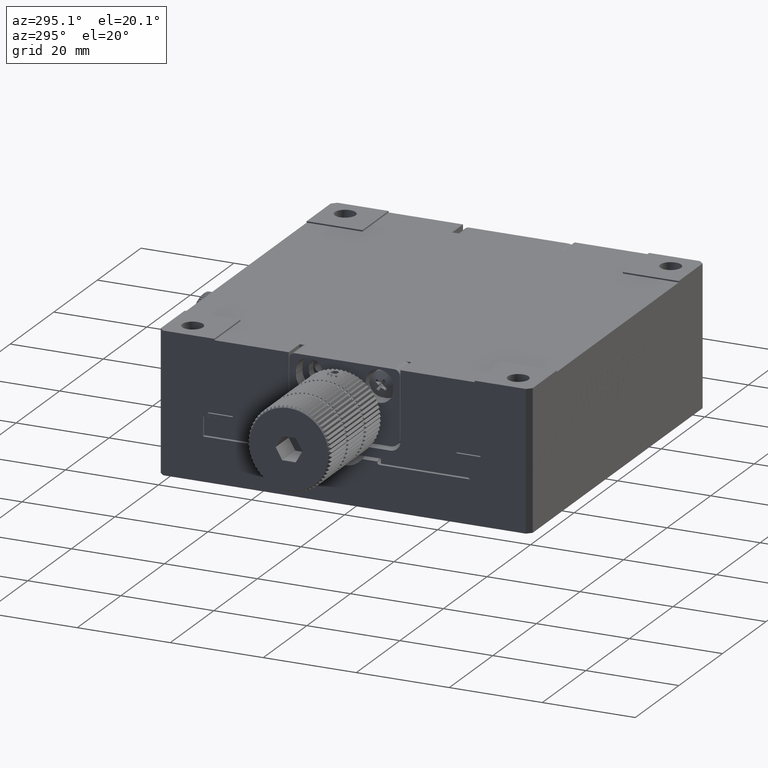
[diagram: clean part render]
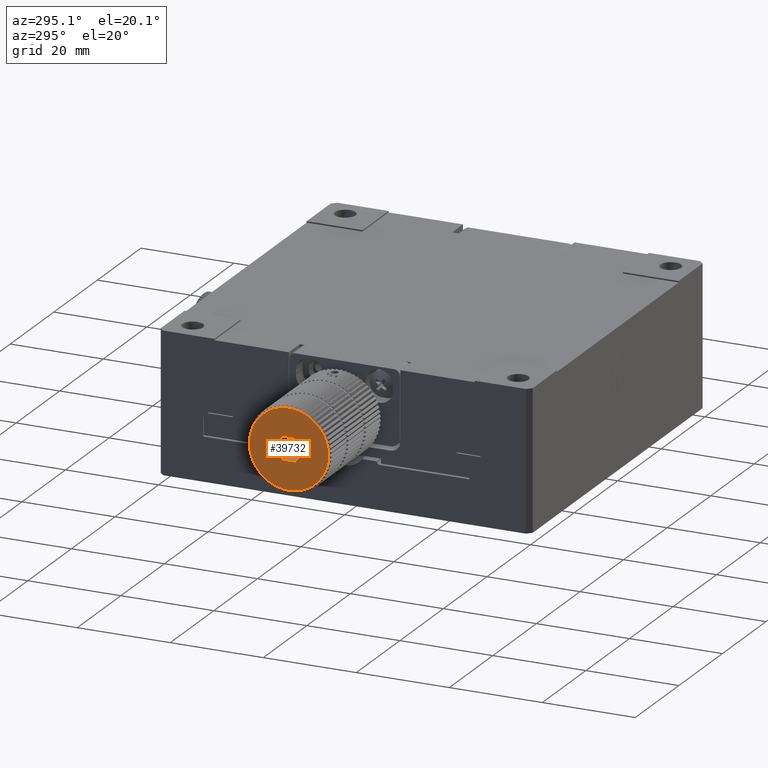
[diagram: same view with one face highlighted and labeled with its STEP entity id]
A machine part, auxiliary view. The second image highlights one B-rep face of the part: STEP entity #39732.
In plain terms, the highlighted planar face has unit normal (1, -0, 0).
Its self-contained STEP definition (entity closure, byte-faithful):
#49 = ORIENTED_EDGE ( 'NONE', *, *, #8546, .F. ) ;
#249 = CIRCLE ( 'NONE', #64759, 8.500000000000007105 ) ;
#580 = CIRCLE ( 'NONE', #71680, 8.500000000000007105 ) ;
#670 = DIRECTION ( 'NONE',  ( 0.000000000000000000, 0.000000000000000000, -1.000000000000000000 ) ) ;
#745 = AXIS2_PLACEMENT_3D ( 'NONE', #79942, #17253, #42410 ) ;
#915 = DIRECTION ( 'NONE',  ( 0.000000000000000000, 0.000000000000000000, -1.000000000000000000 ) ) ;
#1123 = DIRECTION ( 'NONE',  ( 0.000000000000000000, 0.000000000000000000, -1.000000000000000000 ) ) ;
#1296 = CARTESIAN_POINT ( 'NONE',  ( -65.49999999999998579, -2.602085213965210642E-15, 149.9000000000000625 ) ) ;
#1355 = AXIS2_PLACEMENT_3D ( 'NONE', #43711, #50290, #26387 ) ;
#1403 = VERTEX_POINT ( 'NONE', #20637 ) ;
#1473 = AXIS2_PLACEMENT_3D ( 'NONE', #64090, #63680, #64890 ) ;
#1675 = ORIENTED_EDGE ( 'NONE', *, *, #11315, .F. ) ;
#1880 = AXIS2_PLACEMENT_3D ( 'NONE', #57156, #64560, #670 ) ;
#1881 = DIRECTION ( 'NONE',  ( 0.000000000000000000, 0.000000000000000000, -1.000000000000000000 ) ) ;
#2090 = EDGE_CURVE ( 'NONE', #49206, #3150, #51617, .T. ) ;
#2216 = DIRECTION ( 'NONE',  ( 0.000000000000000000, 0.000000000000000000, -1.000000000000000000 ) ) ;
#2444 = DIRECTION ( 'NONE',  ( 0.000000000000000000, 0.4999999999999996669, -0.8660254037844388186 ) ) ;
#2457 = VERTEX_POINT ( 'NONE', #15653 ) ;
#2539 = EDGE_CURVE ( 'NONE', #9751, #55110, #22224, .T. ) ;
#2725 = DIRECTION ( 'NONE',  ( 1.000000000000000000, 0.000000000000000000, -0.000000000000000000 ) ) ;
#2787 = CARTESIAN_POINT ( 'NONE',  ( -65.49999999999998579, -2.602085213965204331E-15, 158.4000000000000625 ) ) ;
#2946 = ORIENTED_EDGE ( 'NONE', *, *, #35283, .F. ) ;
#3104 = CIRCLE ( 'NONE', #74228, 8.500000000000007105 ) ;
#3150 = VERTEX_POINT ( 'NONE', #56783 ) ;
#3173 = CARTESIAN_POINT ( 'NONE',  ( -65.49999999999998579, -2.602085213965210642E-15, 149.9000000000000625 ) ) ;
#3210 = CIRCLE ( 'NONE', #44070, 8.500000000000007105 ) ;
#3227 = AXIS2_PLACEMENT_3D ( 'NONE', #40644, #71148, #34455 ) ;
#3348 = VECTOR ( 'NONE', #9612, 1000.000000000000227 ) ;
#3401 = CARTESIAN_POINT ( 'NONE',  ( -65.49999999999998579, -2.602085213965210642E-15, 149.9000000000000625 ) ) ;
#3557 = CIRCLE ( 'NONE', #74695, 8.500000000000007105 ) ;
#3790 = CARTESIAN_POINT ( 'NONE',  ( -65.49999999999998579, 4.996174644485998684, 156.7766444521871279 ) ) ;
#3972 = DIRECTION ( 'NONE',  ( 0.000000000000000000, 0.000000000000000000, -1.000000000000000000 ) ) ;
#4261 = ORIENTED_EDGE ( 'NONE', *, *, #74813, .F. ) ;
#4557 = CIRCLE ( 'NONE', #49294, 8.500000000000007105 ) ;
#4575 = CIRCLE ( 'NONE', #55913, 8.500000000000007105 ) ;
#4640 = CARTESIAN_POINT ( 'NONE',  ( -65.49999999999998579, 8.500000000000007105, 149.9000000000000909 ) ) ;
#4659 = ORIENTED_EDGE ( 'NONE', *, *, #31353, .F. ) ;
#4763 = DIRECTION ( 'NONE',  ( 1.000000000000000000, 0.000000000000000000, -0.000000000000000000 ) ) ;
#4978 = EDGE_CURVE ( 'NONE', #77252, #26659, #64049, .T. ) ;
#5400 = CIRCLE ( 'NONE', #25152, 8.500000000000007105 ) ;
#5704 = EDGE_CURVE ( 'NONE', #42052, #10383, #32557, .T. ) ;
#5749 = AXIS2_PLACEMENT_3D ( 'NONE', #70449, #75818, #50648 ) ;
#6021 = CIRCLE ( 'NONE', #66582, 8.500000000000007105 ) ;
#6094 = VERTEX_POINT ( 'NONE', #73417 ) ;
#6116 = ORIENTED_EDGE ( 'NONE', *, *, #20027, .F. ) ;
#6300 = AXIS2_PLACEMENT_3D ( 'NONE', #10201, #35382, #3972 ) ;
#6407 = ORIENTED_EDGE ( 'NONE', *, *, #62968, .F. ) ;
#6447 = CIRCLE ( 'NONE', #73617, 8.500000000000007105 ) ;
#6583 = CARTESIAN_POINT ( 'NONE',  ( -65.49999999999998579, -2.602085213965210642E-15, 149.9000000000000625 ) ) ;
#6675 = DIRECTION ( 'NONE',  ( 1.000000000000000000, -0.000000000000000000, 0.000000000000000000 ) ) ;
#6703 = ORIENTED_EDGE ( 'NONE', *, *, #17338, .F. ) ;
#7067 = DIRECTION ( 'NONE',  ( 0.000000000000000000, 0.000000000000000000, -1.000000000000000000 ) ) ;
#7355 = VERTEX_POINT ( 'NONE', #33575 ) ;
#7526 = DIRECTION ( 'NONE',  ( 0.000000000000000000, -0.4999999999999997780, -0.8660254037844387076 ) ) ;
#7682 = ORIENTED_EDGE ( 'NONE', *, *, #63151, .F. ) ;
#7691 = DIRECTION ( 'NONE',  ( 0.000000000000000000, 0.000000000000000000, -1.000000000000000000 ) ) ;
#7734 = VERTEX_POINT ( 'NONE', #49507 ) ;
#7846 = AXIS2_PLACEMENT_3D ( 'NONE', #37117, #80010, #48228 ) ;
#7871 = DIRECTION ( 'NONE',  ( 0.000000000000000000, 0.000000000000000000, -1.000000000000000000 ) ) ;
#7982 = DIRECTION ( 'NONE',  ( 0.000000000000000000, 1.000000000000000000, 0.000000000000000000 ) ) ;
#8003 = VERTEX_POINT ( 'NONE', #13211 ) ;
#8064 = DIRECTION ( 'NONE',  ( 1.000000000000000000, 0.000000000000000000, -0.000000000000000000 ) ) ;
#8322 = CIRCLE ( 'NONE', #9620, 8.500000000000007105 ) ;
#8372 = ORIENTED_EDGE ( 'NONE', *, *, #47863, .F. ) ;
#8390 = CARTESIAN_POINT ( 'NONE',  ( -65.49999999999998579, -2.602085213965207486E-15, 152.4000000000000625 ) ) ;
#8401 = CARTESIAN_POINT ( 'NONE',  ( -65.49999999999998579, 7.361215932167707976, 154.1500000000001194 ) ) ;
#8546 = EDGE_CURVE ( 'NONE', #63642, #26712, #3557, .T. ) ;
#8643 = VERTEX_POINT ( 'NONE', #62194 ) ;
#8834 = CARTESIAN_POINT ( 'NONE',  ( -65.49999999999998579, -0.8884919377751197000, 158.3534361106304118 ) ) ;
#9167 = EDGE_CURVE ( 'NONE', #9293, #80777, #57631, .T. ) ;
#9191 = CARTESIAN_POINT ( 'NONE',  ( -65.49999999999998579, -3.457261466144362139, 157.6651363899621288 ) ) ;
#9293 = VERTEX_POINT ( 'NONE', #45067 ) ;
#9492 = CARTESIAN_POINT ( 'NONE',  ( -65.49999999999998579, -2.602085213965210642E-15, 149.9000000000000625 ) ) ;
#9496 = AXIS2_PLACEMENT_3D ( 'NONE', #43256, #8064, #1881 ) ;
#9612 = DIRECTION ( 'NONE',  ( 0.000000000000000000, -0.4999999999999997780, 0.8660254037844387076 ) ) ;
#9620 = AXIS2_PLACEMENT_3D ( 'NONE', #28284, #77751, #34883 ) ;
#9652 = CARTESIAN_POINT ( 'NONE',  ( -65.49999999999998579, 3.457261466144313733, 142.1348636100379395 ) ) ;
#9751 = VERTEX_POINT ( 'NONE', #53138 ) ;
#9781 = DIRECTION ( 'NONE',  ( 0.000000000000000000, 0.000000000000000000, -1.000000000000000000 ) ) ;
#9803 = CARTESIAN_POINT ( 'NONE',  ( -65.49999999999998579, -2.602085213965210642E-15, 149.9000000000000625 ) ) ;
#9858 = DIRECTION ( 'NONE',  ( 1.000000000000000000, 0.000000000000000000, -0.000000000000000000 ) ) ;
#10141 = DIRECTION ( 'NONE',  ( 0.000000000000000000, 0.000000000000000000, -1.000000000000000000 ) ) ;
#10160 = DIRECTION ( 'NONE',  ( 0.000000000000000000, 0.000000000000000000, -1.000000000000000000 ) ) ;
#10201 = CARTESIAN_POINT ( 'NONE',  ( -65.49999999999998579, -2.602085213965210642E-15, 149.9000000000000625 ) ) ;
#10383 = VERTEX_POINT ( 'NONE', #47238 ) ;
#10595 = AXIS2_PLACEMENT_3D ( 'NONE', #6583, #63091, #24782 ) ;
#11001 = EDGE_CURVE ( 'NONE', #31815, #72341, #6447, .T. ) ;
#11315 = EDGE_CURVE ( 'NONE', #70831, #57020, #69735, .T. ) ;
#11579 = EDGE_CURVE ( 'NONE', #1403, #42052, #40799, .T. ) ;
#11857 = CIRCLE ( 'NONE', #22381, 8.500000000000007105 ) ;
#11893 = ORIENTED_EDGE ( 'NONE', *, *, #60087, .F. ) ;
#12105 = CIRCLE ( 'NONE', #1355, 8.500000000000007105 ) ;
#12606 = DIRECTION ( 'NONE',  ( 0.000000000000000000, 0.000000000000000000, -1.000000000000000000 ) ) ;
#12728 = DIRECTION ( 'NONE',  ( 1.000000000000000000, 0.000000000000000000, -0.000000000000000000 ) ) ;
#12887 = PLANE ( 'NONE',  #51855 ) ;
#13090 = DIRECTION ( 'NONE',  ( 1.000000000000000000, 0.000000000000000000, -0.000000000000000000 ) ) ;
#13211 = CARTESIAN_POINT ( 'NONE',  ( -65.49999999999998579, -6.876644452186997825, 144.9038253555139306 ) ) ;
#13289 = AXIS2_PLACEMENT_3D ( 'NONE', #20877, #60023, #72794 ) ;
#13297 = CARTESIAN_POINT ( 'NONE',  ( -65.49999999999998579, -2.602085213965207486E-15, 149.9000000000000625 ) ) ;
#13300 = VERTEX_POINT ( 'NONE', #30561 ) ;
#13454 = CARTESIAN_POINT ( 'NONE',  ( -65.49999999999998579, 2.886751345948126435, 149.9000000000000625 ) ) ;
#13573 = DIRECTION ( 'NONE',  ( 1.000000000000000000, 0.000000000000000000, -0.000000000000000000 ) ) ;
#13618 = EDGE_CURVE ( 'NONE', #2457, #42749, #67448, .T. ) ;
#13625 = VERTEX_POINT ( 'NONE', #40696 ) ;
#13856 = AXIS2_PLACEMENT_3D ( 'NONE', #19547, #44692, #50879 ) ;
#14111 = EDGE_CURVE ( 'NONE', #55110, #46762, #77204, .T. ) ;
#14411 = DIRECTION ( 'NONE',  ( 0.000000000000000000, 0.000000000000000000, -1.000000000000000000 ) ) ;
#14469 = CARTESIAN_POINT ( 'NONE',  ( -65.49999999999998579, -2.602085213965210642E-15, 149.9000000000000625 ) ) ;
#14561 = EDGE_CURVE ( 'NONE', #59884, #32542, #17381, .T. ) ;
#14587 = CARTESIAN_POINT ( 'NONE',  ( -65.49999999999998579, -2.602085213965210642E-15, 149.9000000000000625 ) ) ;
#14705 = EDGE_CURVE ( 'NONE', #48698, #7734, #249, .T. ) ;
#14739 = CIRCLE ( 'NONE', #41099, 8.500000000000007105 ) ;
#14788 = EDGE_CURVE ( 'NONE', #13300, #44056, #14739, .T. ) ;
#14870 = CARTESIAN_POINT ( 'NONE',  ( -65.49999999999998579, -2.602085213965210642E-15, 149.9000000000000625 ) ) ;
#15653 = CARTESIAN_POINT ( 'NONE',  ( -65.49999999999998579, 5.687610154050267930, 156.2167310165579863 ) ) ;
#15841 = CIRCLE ( 'NONE', #50019, 8.500000000000007105 ) ;
#15967 = DIRECTION ( 'NONE',  ( 1.000000000000000000, 0.000000000000000000, -0.000000000000000000 ) ) ;
#16046 = CARTESIAN_POINT ( 'NONE',  ( -65.49999999999998579, -8.453436110630319078, 150.7884919377750350 ) ) ;
#16282 = ORIENTED_EDGE ( 'NONE', *, *, #17163, .F. ) ;
#16438 = CIRCLE ( 'NONE', #3227, 8.500000000000007105 ) ;
#17111 = CARTESIAN_POINT ( 'NONE',  ( -65.49999999999998579, -2.602085213965207486E-15, 147.4000000000000625 ) ) ;
#17139 = DIRECTION ( 'NONE',  ( 1.000000000000000000, 0.000000000000000000, -0.000000000000000000 ) ) ;
#17163 = EDGE_CURVE ( 'NONE', #30664, #44758, #66251, .T. ) ;
#17253 = DIRECTION ( 'NONE',  ( 1.000000000000000000, 0.000000000000000000, -0.000000000000000000 ) ) ;
#17274 = ORIENTED_EDGE ( 'NONE', *, *, #56155, .F. ) ;
#17338 = EDGE_CURVE ( 'NONE', #6094, #42928, #67630, .T. ) ;
#17381 = CIRCLE ( 'NONE', #22660, 8.500000000000007105 ) ;
#17479 = DIRECTION ( 'NONE',  ( 0.000000000000000000, 0.000000000000000000, -1.000000000000000000 ) ) ;
#18083 = DIRECTION ( 'NONE',  ( 1.000000000000000000, 0.000000000000000000, -0.000000000000000000 ) ) ;
#18108 = CARTESIAN_POINT ( 'NONE',  ( -65.49999999999998579, -5.687610154050226186, 143.5832689834421387 ) ) ;
#18196 = ORIENTED_EDGE ( 'NONE', *, *, #43834, .F. ) ;
#18230 = DIRECTION ( 'NONE',  ( 1.000000000000000000, 0.000000000000000000, -0.000000000000000000 ) ) ;
#18429 = DIRECTION ( 'NONE',  ( 1.000000000000000000, 0.000000000000000000, -0.000000000000000000 ) ) ;
#18546 = CARTESIAN_POINT ( 'NONE',  ( -65.49999999999998579, -2.602085213965210642E-15, 149.9000000000000625 ) ) ;
#18639 = CARTESIAN_POINT ( 'NONE',  ( -65.49999999999998579, -4.996174644485942729, 143.0233555478129119 ) ) ;
#18718 = CARTESIAN_POINT ( 'NONE',  ( -65.49999999999998579, -2.602085213965210642E-15, 149.9000000000000625 ) ) ;
#18838 = CARTESIAN_POINT ( 'NONE',  ( -65.49999999999998579, 7.765136389962123964, 146.4427385338557883 ) ) ;
#18869 = CARTESIAN_POINT ( 'NONE',  ( -65.49999999999998579, -2.602085213965210642E-15, 149.9000000000000625 ) ) ;
#18964 = EDGE_CURVE ( 'NONE', #35557, #36874, #4575, .T. ) ;
#19515 = VERTEX_POINT ( 'NONE', #50967 ) ;
#19547 = CARTESIAN_POINT ( 'NONE',  ( -65.49999999999998579, -2.602085213965210642E-15, 149.9000000000000625 ) ) ;
#19888 = VERTEX_POINT ( 'NONE', #79575 ) ;
#19922 = CARTESIAN_POINT ( 'NONE',  ( -65.49999999999998579, -6.316731016557899814, 155.5876101540503100 ) ) ;
#19938 = CARTESIAN_POINT ( 'NONE',  ( -65.49999999999998579, -2.602085213965210642E-15, 149.9000000000000625 ) ) ;
#19968 = CARTESIAN_POINT ( 'NONE',  ( -65.49999999999998579, -1.443375672974067214, 147.4000000000000625 ) ) ;
#20013 = ORIENTED_EDGE ( 'NONE', *, *, #27387, .F. ) ;
#20027 = EDGE_CURVE ( 'NONE', #26659, #20952, #49437, .T. ) ;
#20320 = ORIENTED_EDGE ( 'NONE', *, *, #64785, .F. ) ;
#20406 = EDGE_CURVE ( 'NONE', #78114, #49291, #42500, .T. ) ;
#20408 = ORIENTED_EDGE ( 'NONE', *, *, #69089, .F. ) ;
#20502 = DIRECTION ( 'NONE',  ( 0.000000000000000000, 0.000000000000000000, -1.000000000000000000 ) ) ;
#20510 = DIRECTION ( 'NONE',  ( 1.000000000000000000, 0.000000000000000000, -0.000000000000000000 ) ) ;
#20548 = VERTEX_POINT ( 'NONE', #50678 ) ;
#20637 = CARTESIAN_POINT ( 'NONE',  ( -65.49999999999998579, 7.361215932167736398, 145.6500000000000909 ) ) ;
#20877 = CARTESIAN_POINT ( 'NONE',  ( -65.49999999999998579, -2.602085213965210642E-15, 149.9000000000000625 ) ) ;
#20952 = VERTEX_POINT ( 'NONE', #55442 ) ;
#21168 = DIRECTION ( 'NONE',  ( 1.000000000000000000, 0.000000000000000000, -0.000000000000000000 ) ) ;
#21220 = ORIENTED_EDGE ( 'NONE', *, *, #70969, .F. ) ;
#21609 = ORIENTED_EDGE ( 'NONE', *, *, #23657, .F. ) ;
#21708 = CARTESIAN_POINT ( 'NONE',  ( -65.49999999999998579, -2.602085213965210642E-15, 149.9000000000000625 ) ) ;
#21745 = CARTESIAN_POINT ( 'NONE',  ( -65.49999999999998579, -2.602085213965210642E-15, 149.9000000000000625 ) ) ;
#21858 = DIRECTION ( 'NONE',  ( 1.000000000000000000, 0.000000000000000000, -0.000000000000000000 ) ) ;
#22053 = AXIS2_PLACEMENT_3D ( 'NONE', #50030, #44268, #50436 ) ;
#22076 = CARTESIAN_POINT ( 'NONE',  ( -65.49999999999998579, -8.083980388508853920, 152.5266444521870142 ) ) ;
#22224 = LINE ( 'NONE', #65527, #54300 ) ;
#22317 = VECTOR ( 'NONE', #62039, 1000.000000000000000 ) ;
#22381 = AXIS2_PLACEMENT_3D ( 'NONE', #74418, #42669, #67811 ) ;
#22422 = ORIENTED_EDGE ( 'NONE', *, *, #27012, .F. ) ;
#22546 = ORIENTED_EDGE ( 'NONE', *, *, #64329, .F. ) ;
#22551 = DIRECTION ( 'NONE',  ( 1.000000000000000000, 0.000000000000000000, -0.000000000000000000 ) ) ;
#22590 = CIRCLE ( 'NONE', #26570, 8.500000000000007105 ) ;
#22660 = AXIS2_PLACEMENT_3D ( 'NONE', #52623, #59627, #77395 ) ;
#22661 = DIRECTION ( 'NONE',  ( 0.000000000000000000, 0.000000000000000000, -1.000000000000000000 ) ) ;
#22845 = AXIS2_PLACEMENT_3D ( 'NONE', #75558, #55768, #68552 ) ;
#23067 = CIRCLE ( 'NONE', #50726, 8.500000000000007105 ) ;
#23075 = DIRECTION ( 'NONE',  ( 1.000000000000000000, 0.000000000000000000, -0.000000000000000000 ) ) ;
#23138 = ORIENTED_EDGE ( 'NONE', *, *, #14561, .F. ) ;
#23149 = VERTEX_POINT ( 'NONE', #70490 ) ;
#23258 = CIRCLE ( 'NONE', #40413, 8.500000000000007105 ) ;
#23266 = ORIENTED_EDGE ( 'NONE', *, *, #45125, .F. ) ;
#23294 = EDGE_CURVE ( 'NONE', #42749, #72510, #42782, .T. ) ;
#23374 = CARTESIAN_POINT ( 'NONE',  ( -65.49999999999998579, -2.886751345948132208, 149.9000000000000625 ) ) ;
#23603 = CARTESIAN_POINT ( 'NONE',  ( -65.49999999999998579, -2.602085213965210642E-15, 149.9000000000000625 ) ) ;
#23657 = EDGE_CURVE ( 'NONE', #44056, #7355, #3210, .T. ) ;
#23873 = DIRECTION ( 'NONE',  ( 0.000000000000000000, 0.000000000000000000, -1.000000000000000000 ) ) ;
#24317 = CIRCLE ( 'NONE', #45373, 8.500000000000007105 ) ;
#24610 = ORIENTED_EDGE ( 'NONE', *, *, #71375, .F. ) ;
#24782 = DIRECTION ( 'NONE',  ( 0.000000000000000000, 0.000000000000000000, -1.000000000000000000 ) ) ;
#24865 = DIRECTION ( 'NONE',  ( 0.000000000000000000, 0.000000000000000000, -1.000000000000000000 ) ) ;
#25152 = AXIS2_PLACEMENT_3D ( 'NONE', #14870, #58580, #78752 ) ;
#25158 = CIRCLE ( 'NONE', #39651, 8.500000000000007105 ) ;
#25289 = EDGE_CURVE ( 'NONE', #60459, #78114, #580, .T. ) ;
#25670 = FACE_OUTER_BOUND ( 'NONE', #54393, .T. ) ;
#25724 = AXIS2_PLACEMENT_3D ( 'NONE', #26810, #51929, #14411 ) ;
#25789 = CIRCLE ( 'NONE', #25724, 8.500000000000007105 ) ;
#25802 = VERTEX_POINT ( 'NONE', #48530 ) ;
#26018 = VERTEX_POINT ( 'NONE', #8834 ) ;
#26095 = VERTEX_POINT ( 'NONE', #65303 ) ;
#26387 = DIRECTION ( 'NONE',  ( 0.000000000000000000, 0.000000000000000000, -1.000000000000000000 ) ) ;
#26485 = CARTESIAN_POINT ( 'NONE',  ( -65.49999999999998579, 2.886751345948125991, 149.9000000000000625 ) ) ;
#26570 = AXIS2_PLACEMENT_3D ( 'NONE', #42346, #22551, #28372 ) ;
#26659 = VERTEX_POINT ( 'NONE', #73392 ) ;
#26712 = VERTEX_POINT ( 'NONE', #68019 ) ;
#26750 = EDGE_CURVE ( 'NONE', #39011, #39507, #25789, .T. ) ;
#26810 = CARTESIAN_POINT ( 'NONE',  ( -65.49999999999998579, -2.602085213965210642E-15, 149.9000000000000625 ) ) ;
#26986 = CARTESIAN_POINT ( 'NONE',  ( -65.49999999999998579, -6.316731016557788791, 144.2123898459497013 ) ) ;
#27012 = EDGE_CURVE ( 'NONE', #3150, #54175, #35039, .T. ) ;
#27387 = EDGE_CURVE ( 'NONE', #26095, #68595, #6021, .T. ) ;
#27959 = DIRECTION ( 'NONE',  ( 1.000000000000000000, 0.000000000000000000, -0.000000000000000000 ) ) ;
#28284 = CARTESIAN_POINT ( 'NONE',  ( -65.49999999999998579, -2.602085213965210642E-15, 149.9000000000000625 ) ) ;
#28372 = DIRECTION ( 'NONE',  ( 0.000000000000000000, 0.000000000000000000, -1.000000000000000000 ) ) ;
#28397 = DIRECTION ( 'NONE',  ( 1.000000000000000000, 0.000000000000000000, -0.000000000000000000 ) ) ;
#28528 = AXIS2_PLACEMENT_3D ( 'NONE', #51442, #38709, #44457 ) ;
#28587 = VERTEX_POINT ( 'NONE', #28840 ) ;
#28645 = ORIENTED_EDGE ( 'NONE', *, *, #4978, .F. ) ;
#28818 = DIRECTION ( 'NONE',  ( 1.000000000000000000, 0.000000000000000000, -0.000000000000000000 ) ) ;
#28840 = CARTESIAN_POINT ( 'NONE',  ( -65.49999999999998579, -5.687610154050351419, 156.2167310165578726 ) ) ;
#29003 = VECTOR ( 'NONE', #7982, 1000.000000000000000 ) ;
#29464 = DIRECTION ( 'NONE',  ( 1.000000000000000000, 0.000000000000000000, -0.000000000000000000 ) ) ;
#29540 = DIRECTION ( 'NONE',  ( 1.000000000000000000, 0.000000000000000000, -0.000000000000000000 ) ) ;
#29847 = CARTESIAN_POINT ( 'NONE',  ( -65.49999999999998579, -2.626644452187111511, 157.9839803885088543 ) ) ;
#29923 = DIRECTION ( 'NONE',  ( 1.000000000000000000, 0.000000000000000000, -0.000000000000000000 ) ) ;
#29996 = CIRCLE ( 'NONE', #6300, 8.500000000000007105 ) ;
#30149 = CARTESIAN_POINT ( 'NONE',  ( -65.49999999999998579, -2.626644452186952083, 141.8160196114912139 ) ) ;
#30311 = DIRECTION ( 'NONE',  ( 0.000000000000000000, 0.000000000000000000, -1.000000000000000000 ) ) ;
#30351 = CIRCLE ( 'NONE', #10595, 8.500000000000007105 ) ;
#30392 = CARTESIAN_POINT ( 'NONE',  ( -65.49999999999998579, -8.314254606237359013, 148.1327506280489956 ) ) ;
#30561 = CARTESIAN_POINT ( 'NONE',  ( -65.49999999999998579, -3.457261466144209816, 142.1348636100379110 ) ) ;
#30664 = VERTEX_POINT ( 'NONE', #64196 ) ;
#30796 = ORIENTED_EDGE ( 'NONE', *, *, #20406, .F. ) ;
#31268 = DIRECTION ( 'NONE',  ( 1.000000000000000000, 0.000000000000000000, -0.000000000000000000 ) ) ;
#31353 = EDGE_CURVE ( 'NONE', #80777, #2457, #53945, .T. ) ;
#31462 = CARTESIAN_POINT ( 'NONE',  ( -65.49999999999998579, 8.083980388508798853, 152.5266444521871279 ) ) ;
#31714 = CARTESIAN_POINT ( 'NONE',  ( -65.49999999999998579, -2.602085213965210642E-15, 149.9000000000000625 ) ) ;
#31815 = VERTEX_POINT ( 'NONE', #22076 ) ;
#32318 = ORIENTED_EDGE ( 'NONE', *, *, #56427, .F. ) ;
#32542 = VERTEX_POINT ( 'NONE', #9652 ) ;
#32557 = CIRCLE ( 'NONE', #78587, 8.500000000000007105 ) ;
#32906 = DIRECTION ( 'NONE',  ( 0.000000000000000000, 0.000000000000000000, -1.000000000000000000 ) ) ;
#33073 = DIRECTION ( 'NONE',  ( 1.000000000000000000, 0.000000000000000000, -0.000000000000000000 ) ) ;
#33123 = ORIENTED_EDGE ( 'NONE', *, *, #23294, .F. ) ;
#33248 = CIRCLE ( 'NONE', #50253, 8.500000000000007105 ) ;
#33450 = VERTEX_POINT ( 'NONE', #73296 ) ;
#33466 = VERTEX_POINT ( 'NONE', #35794 ) ;
#33575 = CARTESIAN_POINT ( 'NONE',  ( -65.49999999999998579, -1.767249371950853964, 141.5857453937626644 ) ) ;
#33605 = EDGE_CURVE ( 'NONE', #25802, #66350, #69811, .T. ) ;
#33739 = EDGE_CURVE ( 'NONE', #48781, #33466, #15841, .T. ) ;
#34455 = DIRECTION ( 'NONE',  ( 0.000000000000000000, 0.000000000000000000, -1.000000000000000000 ) ) ;
#34519 = AXIS2_PLACEMENT_3D ( 'NONE', #21745, #15967, #66642 ) ;
#34570 = DIRECTION ( 'NONE',  ( 1.000000000000000000, 0.000000000000000000, -0.000000000000000000 ) ) ;
#34777 = ORIENTED_EDGE ( 'NONE', *, *, #48331, .F. ) ;
#34883 = DIRECTION ( 'NONE',  ( 0.000000000000000000, 0.000000000000000000, -1.000000000000000000 ) ) ;
#34926 = CARTESIAN_POINT ( 'NONE',  ( -65.49999999999998579, -2.602085213965210642E-15, 149.9000000000000625 ) ) ;
#34933 = CIRCLE ( 'NONE', #13856, 8.500000000000007105 ) ;
#35039 = CIRCLE ( 'NONE', #745, 8.500000000000007105 ) ;
#35174 = CIRCLE ( 'NONE', #75936, 8.500000000000007105 ) ;
#35283 = EDGE_CURVE ( 'NONE', #8003, #60459, #12105, .T. ) ;
#35321 = EDGE_CURVE ( 'NONE', #39507, #47970, #30351, .T. ) ;
#35382 = DIRECTION ( 'NONE',  ( 1.000000000000000000, 0.000000000000000000, -0.000000000000000000 ) ) ;
#35557 = VERTEX_POINT ( 'NONE', #16046 ) ;
#35794 = CARTESIAN_POINT ( 'NONE',  ( -65.49999999999998579, 5.687610154050309674, 143.5832689834421956 ) ) ;
#35844 = CIRCLE ( 'NONE', #48981, 8.500000000000007105 ) ;
#35879 = EDGE_CURVE ( 'NONE', #33466, #19515, #25158, .T. ) ;
#36213 = DIRECTION ( 'NONE',  ( 0.000000000000000000, 0.000000000000000000, -1.000000000000000000 ) ) ;
#36747 = CARTESIAN_POINT ( 'NONE',  ( -65.49999999999998579, -2.602085213965210642E-15, 149.9000000000000625 ) ) ;
#36874 = VERTEX_POINT ( 'NONE', #61145 ) ;
#37117 = CARTESIAN_POINT ( 'NONE',  ( -65.49999999999998579, -2.602085213965210642E-15, 149.9000000000000625 ) ) ;
#37661 = AXIS2_PLACEMENT_3D ( 'NONE', #78073, #21168, #47118 ) ;
#38011 = ORIENTED_EDGE ( 'NONE', *, *, #75645, .F. ) ;
#38309 = CIRCLE ( 'NONE', #13289, 8.500000000000007105 ) ;
#38440 = CARTESIAN_POINT ( 'NONE',  ( -65.49999999999998579, 4.250000000000017764, 142.5387840678323244 ) ) ;
#38554 = AXIS2_PLACEMENT_3D ( 'NONE', #21708, #65013, #20502 ) ;
#38612 = AXIS2_PLACEMENT_3D ( 'NONE', #9492, #73383, #41646 ) ;
#38709 = DIRECTION ( 'NONE',  ( 1.000000000000000000, 0.000000000000000000, -0.000000000000000000 ) ) ;
#39011 = VERTEX_POINT ( 'NONE', #66178 ) ;
#39495 = CIRCLE ( 'NONE', #7846, 8.500000000000007105 ) ;
#39507 = VERTEX_POINT ( 'NONE', #29847 ) ;
#39601 = CIRCLE ( 'NONE', #63304, 8.500000000000007105 ) ;
#39651 = AXIS2_PLACEMENT_3D ( 'NONE', #58446, #20510, #1123 ) ;
#39732 = ADVANCED_FACE ( 'NONE', ( #25670, #81341 ), #12887, .F. ) ;
#39745 = CARTESIAN_POINT ( 'NONE',  ( -65.49999999999998579, -4.250000000000072831, 157.2612159321677439 ) ) ;
#40110 = EDGE_CURVE ( 'NONE', #40216, #70831, #53150, .T. ) ;
#40163 = CARTESIAN_POINT ( 'NONE',  ( -65.49999999999998579, -4.249999999999906741, 142.5387840678322675 ) ) ;
#40216 = VERTEX_POINT ( 'NONE', #30392 ) ;
#40257 = DIRECTION ( 'NONE',  ( 0.000000000000000000, 0.000000000000000000, -1.000000000000000000 ) ) ;
#40413 = AXIS2_PLACEMENT_3D ( 'NONE', #56855, #13573, #57272 ) ;
#40644 = CARTESIAN_POINT ( 'NONE',  ( -65.49999999999998579, -2.602085213965210642E-15, 149.9000000000000625 ) ) ;
#40696 = CARTESIAN_POINT ( 'NONE',  ( -65.49999999999998579, 1.767249371950902592, 158.2142546062374606 ) ) ;
#40799 = CIRCLE ( 'NONE', #48646, 8.500000000000007105 ) ;
#41099 = AXIS2_PLACEMENT_3D ( 'NONE', #74446, #29540, #10141 ) ;
#41226 = EDGE_CURVE ( 'NONE', #54175, #9293, #71715, .T. ) ;
#41233 = CIRCLE ( 'NONE', #38612, 8.500000000000007105 ) ;
#41299 = AXIS2_PLACEMENT_3D ( 'NONE', #14469, #33073, #52400 ) ;
#41335 = CIRCLE ( 'NONE', #5749, 8.500000000000007105 ) ;
#41438 = VERTEX_POINT ( 'NONE', #75825 ) ;
#41587 = DIRECTION ( 'NONE',  ( 0.000000000000000000, 0.000000000000000000, -1.000000000000000000 ) ) ;
#41621 = CIRCLE ( 'NONE', #58754, 8.500000000000007105 ) ;
#41646 = DIRECTION ( 'NONE',  ( 0.000000000000000000, 0.000000000000000000, -1.000000000000000000 ) ) ;
#42052 = VERTEX_POINT ( 'NONE', #18838 ) ;
#42094 = DIRECTION ( 'NONE',  ( 0.000000000000000000, 0.000000000000000000, -1.000000000000000000 ) ) ;
#42237 = ORIENTED_EDGE ( 'NONE', *, *, #18964, .F. ) ;
#42316 = ORIENTED_EDGE ( 'NONE', *, *, #61411, .F. ) ;
#42346 = CARTESIAN_POINT ( 'NONE',  ( -65.49999999999998579, -2.602085213965210642E-15, 149.9000000000000625 ) ) ;
#42410 = DIRECTION ( 'NONE',  ( 0.000000000000000000, 0.000000000000000000, -1.000000000000000000 ) ) ;
#42469 = EDGE_CURVE ( 'NONE', #46465, #8643, #52506, .T. ) ;
#42499 = EDGE_CURVE ( 'NONE', #62099, #23149, #61277, .T. ) ;
#42500 = CIRCLE ( 'NONE', #62274, 8.500000000000007105 ) ;
#42669 = DIRECTION ( 'NONE',  ( 1.000000000000000000, 0.000000000000000000, -0.000000000000000000 ) ) ;
#42749 = VERTEX_POINT ( 'NONE', #3790 ) ;
#42782 = CIRCLE ( 'NONE', #47998, 8.500000000000007105 ) ;
#42791 = VECTOR ( 'NONE', #55089, 1000.000000000000114 ) ;
#42897 = DIRECTION ( 'NONE',  ( 0.000000000000000000, 0.000000000000000000, -1.000000000000000000 ) ) ;
#42928 = VERTEX_POINT ( 'NONE', #50358 ) ;
#43256 = CARTESIAN_POINT ( 'NONE',  ( -65.49999999999998579, -2.602085213965210642E-15, 149.9000000000000625 ) ) ;
#43347 = ORIENTED_EDGE ( 'NONE', *, *, #35321, .F. ) ;
#43711 = CARTESIAN_POINT ( 'NONE',  ( -65.49999999999998579, -2.602085213965210642E-15, 149.9000000000000625 ) ) ;
#43834 = EDGE_CURVE ( 'NONE', #57020, #20548, #39495, .T. ) ;
#43840 = ORIENTED_EDGE ( 'NONE', *, *, #74074, .F. ) ;
#43938 = DIRECTION ( 'NONE',  ( 1.000000000000000000, 0.000000000000000000, -0.000000000000000000 ) ) ;
#43972 = CARTESIAN_POINT ( 'NONE',  ( -65.49999999999998579, -8.314254606237359013, 151.6672493719509305 ) ) ;
#43974 = AXIS2_PLACEMENT_3D ( 'NONE', #1296, #52429, #915 ) ;
#44056 = VERTEX_POINT ( 'NONE', #30149 ) ;
#44070 = AXIS2_PLACEMENT_3D ( 'NONE', #64197, #13090, #32906 ) ;
#44268 = DIRECTION ( 'NONE',  ( 1.000000000000000000, 0.000000000000000000, -0.000000000000000000 ) ) ;
#44457 = DIRECTION ( 'NONE',  ( 0.000000000000000000, 0.000000000000000000, -1.000000000000000000 ) ) ;
#44692 = DIRECTION ( 'NONE',  ( 1.000000000000000000, 0.000000000000000000, -0.000000000000000000 ) ) ;
#44758 = VERTEX_POINT ( 'NONE', #58831 ) ;
#45067 = CARTESIAN_POINT ( 'NONE',  ( -65.49999999999998579, 6.876644452187038681, 154.8961746444861092 ) ) ;
#45087 = DIRECTION ( 'NONE',  ( 0.000000000000000000, 0.000000000000000000, -1.000000000000000000 ) ) ;
#45125 = EDGE_CURVE ( 'NONE', #68595, #13625, #39601, .T. ) ;
#45371 = VERTEX_POINT ( 'NONE', #38440 ) ;
#45373 = AXIS2_PLACEMENT_3D ( 'NONE', #76960, #64575, #40257 ) ;
#45488 = ORIENTED_EDGE ( 'NONE', *, *, #35879, .F. ) ;
#45725 = CIRCLE ( 'NONE', #58910, 8.500000000000007105 ) ;
#45968 = ORIENTED_EDGE ( 'NONE', *, *, #2539, .F. ) ;
#46035 = DIRECTION ( 'NONE',  ( 0.000000000000000000, 0.000000000000000000, -1.000000000000000000 ) ) ;
#46267 = ORIENTED_EDGE ( 'NONE', *, *, #70858, .F. ) ;
#46325 = EDGE_CURVE ( 'NONE', #45371, #48781, #64717, .T. ) ;
#46465 = VERTEX_POINT ( 'NONE', #19968 ) ;
#46762 = VERTEX_POINT ( 'NONE', #75549 ) ;
#46886 = ORIENTED_EDGE ( 'NONE', *, *, #41226, .F. ) ;
#46995 = DIRECTION ( 'NONE',  ( 0.000000000000000000, 0.000000000000000000, -1.000000000000000000 ) ) ;
#47004 = ORIENTED_EDGE ( 'NONE', *, *, #67988, .F. ) ;
#47118 = DIRECTION ( 'NONE',  ( 0.000000000000000000, 0.000000000000000000, -1.000000000000000000 ) ) ;
#47238 = CARTESIAN_POINT ( 'NONE',  ( -65.49999999999998579, 8.083980388508798853, 147.2733555478130256 ) ) ;
#47267 = LINE ( 'NONE', #23374, #42791 ) ;
#47863 = EDGE_CURVE ( 'NONE', #26018, #39011, #4557, .T. ) ;
#47868 = ORIENTED_EDGE ( 'NONE', *, *, #81582, .F. ) ;
#47970 = VERTEX_POINT ( 'NONE', #9191 ) ;
#47998 = AXIS2_PLACEMENT_3D ( 'NONE', #79511, #28818, #41587 ) ;
#48046 = CARTESIAN_POINT ( 'NONE',  ( -65.49999999999998579, -2.602085213965210642E-15, 149.9000000000000625 ) ) ;
#48069 = CARTESIAN_POINT ( 'NONE',  ( -65.49999999999998579, -2.602085213965210642E-15, 149.9000000000000625 ) ) ;
#48228 = DIRECTION ( 'NONE',  ( 0.000000000000000000, 0.000000000000000000, -1.000000000000000000 ) ) ;
#48331 = EDGE_CURVE ( 'NONE', #20952, #33450, #70444, .T. ) ;
#48530 = CARTESIAN_POINT ( 'NONE',  ( -65.49999999999998579, 0.8884919377749946889, 158.3534361106304118 ) ) ;
#48646 = AXIS2_PLACEMENT_3D ( 'NONE', #66528, #29464, #17479 ) ;
#48698 = VERTEX_POINT ( 'NONE', #62454 ) ;
#48703 = ORIENTED_EDGE ( 'NONE', *, *, #64126, .F. ) ;
#48709 = AXIS2_PLACEMENT_3D ( 'NONE', #14587, #18429, #61734 ) ;
#48781 = VERTEX_POINT ( 'NONE', #62868 ) ;
#48981 = AXIS2_PLACEMENT_3D ( 'NONE', #79985, #23075, #22661 ) ;
#49195 = ORIENTED_EDGE ( 'NONE', *, *, #13618, .F. ) ;
#49206 = VERTEX_POINT ( 'NONE', #31462 ) ;
#49291 = VERTEX_POINT ( 'NONE', #18639 ) ;
#49294 = AXIS2_PLACEMENT_3D ( 'NONE', #18869, #31268, #50588 ) ;
#49437 = CIRCLE ( 'NONE', #67863, 8.500000000000007105 ) ;
#49507 = CARTESIAN_POINT ( 'NONE',  ( -65.49999999999998579, 8.453436110630319078, 149.0115080622250048 ) ) ;
#50019 = AXIS2_PLACEMENT_3D ( 'NONE', #72280, #79291, #2216 ) ;
#50030 = CARTESIAN_POINT ( 'NONE',  ( -65.49999999999998579, -2.602085213965210642E-15, 149.9000000000000625 ) ) ;
#50035 = DIRECTION ( 'NONE',  ( 0.000000000000000000, 0.000000000000000000, -1.000000000000000000 ) ) ;
#50253 = AXIS2_PLACEMENT_3D ( 'NONE', #31714, #12728, #23873 ) ;
#50290 = DIRECTION ( 'NONE',  ( 1.000000000000000000, 0.000000000000000000, -0.000000000000000000 ) ) ;
#50358 = CARTESIAN_POINT ( 'NONE',  ( -65.49999999999998579, 1.767249371950958103, 141.5857453937627213 ) ) ;
#50436 = DIRECTION ( 'NONE',  ( 0.000000000000000000, 0.000000000000000000, -1.000000000000000000 ) ) ;
#50588 = DIRECTION ( 'NONE',  ( 0.000000000000000000, 0.000000000000000000, -1.000000000000000000 ) ) ;
#50648 = DIRECTION ( 'NONE',  ( 0.000000000000000000, 0.000000000000000000, -1.000000000000000000 ) ) ;
#50678 = CARTESIAN_POINT ( 'NONE',  ( -65.49999999999998579, -7.361215932167680442, 145.6499999999999773 ) ) ;
#50726 = AXIS2_PLACEMENT_3D ( 'NONE', #65840, #34570, #30311 ) ;
#50879 = DIRECTION ( 'NONE',  ( 0.000000000000000000, 0.000000000000000000, -1.000000000000000000 ) ) ;
#50967 = CARTESIAN_POINT ( 'NONE',  ( -65.49999999999998579, 6.316731016557872280, 144.2123898459497582 ) ) ;
#51343 = ORIENTED_EDGE ( 'NONE', *, *, #2090, .F. ) ;
#51442 = CARTESIAN_POINT ( 'NONE',  ( -65.49999999999998579, -2.602085213965210642E-15, 149.9000000000000625 ) ) ;
#51617 = CIRCLE ( 'NONE', #34519, 8.500000000000007105 ) ;
#51855 = AXIS2_PLACEMENT_3D ( 'NONE', #13297, #6675, #24865 ) ;
#51912 = CIRCLE ( 'NONE', #1880, 8.500000000000007105 ) ;
#51929 = DIRECTION ( 'NONE',  ( 1.000000000000000000, 0.000000000000000000, -0.000000000000000000 ) ) ;
#52400 = DIRECTION ( 'NONE',  ( 0.000000000000000000, 0.000000000000000000, -1.000000000000000000 ) ) ;
#52429 = DIRECTION ( 'NONE',  ( 1.000000000000000000, 0.000000000000000000, -0.000000000000000000 ) ) ;
#52506 = LINE ( 'NONE', #71078, #3348 ) ;
#52623 = CARTESIAN_POINT ( 'NONE',  ( -65.49999999999998579, -2.602085213965210642E-15, 149.9000000000000625 ) ) ;
#53138 = CARTESIAN_POINT ( 'NONE',  ( -65.49999999999998579, 1.443375672974061663, 152.4000000000000625 ) ) ;
#53150 = CIRCLE ( 'NONE', #62349, 8.500000000000007105 ) ;
#53591 = ORIENTED_EDGE ( 'NONE', *, *, #11001, .F. ) ;
#53818 = ORIENTED_EDGE ( 'NONE', *, *, #14788, .F. ) ;
#53945 = CIRCLE ( 'NONE', #64520, 8.500000000000007105 ) ;
#54098 = DIRECTION ( 'NONE',  ( 1.000000000000000000, 0.000000000000000000, -0.000000000000000000 ) ) ;
#54175 = VERTEX_POINT ( 'NONE', #8401 ) ;
#54252 = ORIENTED_EDGE ( 'NONE', *, *, #60058, .F. ) ;
#54300 = VECTOR ( 'NONE', #2444, 1000.000000000000000 ) ;
#54361 = CARTESIAN_POINT ( 'NONE',  ( -65.49999999999998579, -2.602085213965210642E-15, 149.9000000000000625 ) ) ;
#54393 = EDGE_LOOP ( 'NONE', ( #20408, #16282, #54252, #21609, #53818, #47004, #48703, #30796, #79039, #2946, #17274, #18196, #1675, #71458, #57640, #7682, #42237, #43840, #53591, #80255, #34777, #6116, #28645, #46267, #38011, #49, #6407, #43347, #57146, #8372, #61103, #68083, #24610, #23266, #20013, #68764, #33123, #49195, #4659, #74137, #46886, #22422, #51343, #20320, #32318, #76012, #47868, #76193, #22546, #81202, #78299, #79651, #67266, #45488, #80846, #79025, #42316, #23138, #21220, #6703 ) ) ;
#55018 = LINE ( 'NONE', #17111, #22317 ) ;
#55020 = DIRECTION ( 'NONE',  ( 0.000000000000000000, 0.000000000000000000, -1.000000000000000000 ) ) ;
#55089 = DIRECTION ( 'NONE',  ( 0.000000000000000000, 0.5000000000000001110, 0.8660254037844385966 ) ) ;
#55110 = VERTEX_POINT ( 'NONE', #13454 ) ;
#55165 = CARTESIAN_POINT ( 'NONE',  ( -65.49999999999998579, -2.602085213965210642E-15, 149.9000000000000625 ) ) ;
#55426 = CARTESIAN_POINT ( 'NONE',  ( -65.49999999999998579, -2.602085213965210642E-15, 149.9000000000000625 ) ) ;
#55442 = CARTESIAN_POINT ( 'NONE',  ( -65.49999999999998579, -7.361215932167778142, 154.1500000000000057 ) ) ;
#55768 = DIRECTION ( 'NONE',  ( 1.000000000000000000, 0.000000000000000000, -0.000000000000000000 ) ) ;
#55871 = DIRECTION ( 'NONE',  ( 0.000000000000000000, 0.000000000000000000, -1.000000000000000000 ) ) ;
#55913 = AXIS2_PLACEMENT_3D ( 'NONE', #55426, #29923, #55020 ) ;
#55927 = CARTESIAN_POINT ( 'NONE',  ( -65.49999999999998579, 4.249999999999948486, 157.2612159321678575 ) ) ;
#56155 = EDGE_CURVE ( 'NONE', #20548, #8003, #41233, .T. ) ;
#56427 = EDGE_CURVE ( 'NONE', #23149, #64843, #8322, .T. ) ;
#56783 = CARTESIAN_POINT ( 'NONE',  ( -65.49999999999998579, 7.765136389962123964, 153.3572614661443936 ) ) ;
#56802 = DIRECTION ( 'NONE',  ( 0.000000000000000000, 0.000000000000000000, -1.000000000000000000 ) ) ;
#56855 = CARTESIAN_POINT ( 'NONE',  ( -65.49999999999998579, -2.602085213965210642E-15, 149.9000000000000625 ) ) ;
#56878 = CIRCLE ( 'NONE', #9496, 8.500000000000007105 ) ;
#56907 = EDGE_CURVE ( 'NONE', #41438, #1403, #68951, .T. ) ;
#57020 = VERTEX_POINT ( 'NONE', #78771 ) ;
#57146 = ORIENTED_EDGE ( 'NONE', *, *, #26750, .F. ) ;
#57156 = CARTESIAN_POINT ( 'NONE',  ( -65.49999999999998579, -2.602085213965210642E-15, 149.9000000000000625 ) ) ;
#57272 = DIRECTION ( 'NONE',  ( 0.000000000000000000, 0.000000000000000000, -1.000000000000000000 ) ) ;
#57490 = CARTESIAN_POINT ( 'NONE',  ( -65.49999999999998579, -8.453436110630319078, 149.0115080622249479 ) ) ;
#57631 = CIRCLE ( 'NONE', #22053, 8.500000000000007105 ) ;
#57640 = ORIENTED_EDGE ( 'NONE', *, *, #68845, .F. ) ;
#58170 = CARTESIAN_POINT ( 'NONE',  ( -65.49999999999998579, 2.626644452187007595, 157.9839803885088827 ) ) ;
#58172 = VECTOR ( 'NONE', #7526, 1000.000000000000227 ) ;
#58446 = CARTESIAN_POINT ( 'NONE',  ( -65.49999999999998579, -2.602085213965210642E-15, 149.9000000000000625 ) ) ;
#58580 = DIRECTION ( 'NONE',  ( 1.000000000000000000, 0.000000000000000000, -0.000000000000000000 ) ) ;
#58649 = DIRECTION ( 'NONE',  ( 0.000000000000000000, 0.000000000000000000, -1.000000000000000000 ) ) ;
#58754 = AXIS2_PLACEMENT_3D ( 'NONE', #65568, #72170, #7871 ) ;
#58831 = CARTESIAN_POINT ( 'NONE',  ( -65.49999999999998579, -2.602085213965210642E-15, 141.4000000000000625 ) ) ;
#58910 = AXIS2_PLACEMENT_3D ( 'NONE', #18718, #81400, #50035 ) ;
#59627 = DIRECTION ( 'NONE',  ( 1.000000000000000000, 0.000000000000000000, -0.000000000000000000 ) ) ;
#59884 = VERTEX_POINT ( 'NONE', #71973 ) ;
#60023 = DIRECTION ( 'NONE',  ( 1.000000000000000000, 0.000000000000000000, -0.000000000000000000 ) ) ;
#60058 = EDGE_CURVE ( 'NONE', #7355, #30664, #11857, .T. ) ;
#60087 = EDGE_CURVE ( 'NONE', #46762, #46465, #55018, .T. ) ;
#60369 = VERTEX_POINT ( 'NONE', #57490 ) ;
#60411 = EDGE_CURVE ( 'NONE', #19888, #9751, #64473, .T. ) ;
#60444 = VERTEX_POINT ( 'NONE', #40163 ) ;
#60459 = VERTEX_POINT ( 'NONE', #26986 ) ;
#60499 = CARTESIAN_POINT ( 'NONE',  ( -65.49999999999998579, 8.314254606237330592, 151.6672493719510157 ) ) ;
#60611 = DIRECTION ( 'NONE',  ( 1.000000000000000000, 0.000000000000000000, -0.000000000000000000 ) ) ;
#60856 = EDGE_LOOP ( 'NONE', ( #81637, #11893, #72836, #45968, #77914, #4261 ) ) ;
#61041 = DIRECTION ( 'NONE',  ( 1.000000000000000000, 0.000000000000000000, -0.000000000000000000 ) ) ;
#61103 = ORIENTED_EDGE ( 'NONE', *, *, #70507, .F. ) ;
#61145 = CARTESIAN_POINT ( 'NONE',  ( -65.49999999999998579, -8.500000000000007105, 149.8999999999999488 ) ) ;
#61277 = CIRCLE ( 'NONE', #37661, 8.500000000000007105 ) ;
#61411 = EDGE_CURVE ( 'NONE', #32542, #45371, #38309, .T. ) ;
#61734 = DIRECTION ( 'NONE',  ( 0.000000000000000000, 0.000000000000000000, -1.000000000000000000 ) ) ;
#61840 = CARTESIAN_POINT ( 'NONE',  ( -65.49999999999998579, -2.602085213965210642E-15, 149.9000000000000625 ) ) ;
#62039 = DIRECTION ( 'NONE',  ( -0.000000000000000000, -1.000000000000000000, -0.000000000000000000 ) ) ;
#62099 = VERTEX_POINT ( 'NONE', #4640 ) ;
#62194 = CARTESIAN_POINT ( 'NONE',  ( -65.49999999999998579, -2.886751345948132208, 149.9000000000000625 ) ) ;
#62274 = AXIS2_PLACEMENT_3D ( 'NONE', #61840, #60611, #80403 ) ;
#62349 = AXIS2_PLACEMENT_3D ( 'NONE', #3173, #27959, #9781 ) ;
#62454 = CARTESIAN_POINT ( 'NONE',  ( -65.49999999999998579, 8.314254606237359013, 148.1327506280491377 ) ) ;
#62868 = CARTESIAN_POINT ( 'NONE',  ( -65.49999999999998579, 4.996174644486026217, 143.0233555478129972 ) ) ;
#62968 = EDGE_CURVE ( 'NONE', #47970, #63642, #35844, .T. ) ;
#63091 = DIRECTION ( 'NONE',  ( 1.000000000000000000, 0.000000000000000000, -0.000000000000000000 ) ) ;
#63151 = EDGE_CURVE ( 'NONE', #36874, #60369, #56878, .T. ) ;
#63304 = AXIS2_PLACEMENT_3D ( 'NONE', #3401, #54098, #71888 ) ;
#63642 = VERTEX_POINT ( 'NONE', #39745 ) ;
#63680 = DIRECTION ( 'NONE',  ( 1.000000000000000000, 0.000000000000000000, -0.000000000000000000 ) ) ;
#63772 = DIRECTION ( 'NONE',  ( 1.000000000000000000, 0.000000000000000000, -0.000000000000000000 ) ) ;
#64049 = CIRCLE ( 'NONE', #28528, 8.500000000000007105 ) ;
#64090 = CARTESIAN_POINT ( 'NONE',  ( -65.49999999999998579, -2.602085213965210642E-15, 149.9000000000000625 ) ) ;
#64126 = EDGE_CURVE ( 'NONE', #49291, #60444, #41621, .T. ) ;
#64176 = CARTESIAN_POINT ( 'NONE',  ( -65.49999999999998579, -2.602085213965210642E-15, 149.9000000000000625 ) ) ;
#64196 = CARTESIAN_POINT ( 'NONE',  ( -65.49999999999998579, -0.8884919377749443958, 141.4465638893697133 ) ) ;
#64197 = CARTESIAN_POINT ( 'NONE',  ( -65.49999999999998579, -2.602085213965210642E-15, 149.9000000000000625 ) ) ;
#64329 = EDGE_CURVE ( 'NONE', #10383, #48698, #23258, .T. ) ;
#64457 = DIRECTION ( 'NONE',  ( 1.000000000000000000, 0.000000000000000000, -0.000000000000000000 ) ) ;
#64473 = LINE ( 'NONE', #8390, #29003 ) ;
#64520 = AXIS2_PLACEMENT_3D ( 'NONE', #36747, #74653, #42094 ) ;
#64560 = DIRECTION ( 'NONE',  ( 1.000000000000000000, 0.000000000000000000, -0.000000000000000000 ) ) ;
#64575 = DIRECTION ( 'NONE',  ( 1.000000000000000000, 0.000000000000000000, -0.000000000000000000 ) ) ;
#64717 = CIRCLE ( 'NONE', #1473, 8.500000000000007105 ) ;
#64759 = AXIS2_PLACEMENT_3D ( 'NONE', #48046, #17139, #55871 ) ;
#64785 = EDGE_CURVE ( 'NONE', #64843, #49206, #35174, .T. ) ;
#64843 = VERTEX_POINT ( 'NONE', #60499 ) ;
#64890 = DIRECTION ( 'NONE',  ( 0.000000000000000000, 0.000000000000000000, -1.000000000000000000 ) ) ;
#65013 = DIRECTION ( 'NONE',  ( 1.000000000000000000, 0.000000000000000000, -0.000000000000000000 ) ) ;
#65303 = CARTESIAN_POINT ( 'NONE',  ( -65.49999999999998579, 3.457261466144258222, 157.6651363899622140 ) ) ;
#65527 = CARTESIAN_POINT ( 'NONE',  ( -65.49999999999998579, 1.443375672974061441, 152.4000000000000625 ) ) ;
#65568 = CARTESIAN_POINT ( 'NONE',  ( -65.49999999999998579, -2.602085213965210642E-15, 149.9000000000000625 ) ) ;
#65840 = CARTESIAN_POINT ( 'NONE',  ( -65.49999999999998579, -2.602085213965210642E-15, 149.9000000000000625 ) ) ;
#66178 = CARTESIAN_POINT ( 'NONE',  ( -65.49999999999998579, -1.767249371951020498, 158.2142546062374606 ) ) ;
#66251 = CIRCLE ( 'NONE', #22845, 8.500000000000007105 ) ;
#66350 = VERTEX_POINT ( 'NONE', #2787 ) ;
#66528 = CARTESIAN_POINT ( 'NONE',  ( -65.49999999999998579, -2.602085213965210642E-15, 149.9000000000000625 ) ) ;
#66582 = AXIS2_PLACEMENT_3D ( 'NONE', #34926, #2725, #46035 ) ;
#66642 = DIRECTION ( 'NONE',  ( 0.000000000000000000, 0.000000000000000000, -1.000000000000000000 ) ) ;
#67128 = CARTESIAN_POINT ( 'NONE',  ( -65.49999999999998579, -2.602085213965210642E-15, 149.9000000000000625 ) ) ;
#67266 = ORIENTED_EDGE ( 'NONE', *, *, #69732, .F. ) ;
#67448 = CIRCLE ( 'NONE', #38554, 8.500000000000007105 ) ;
#67630 = CIRCLE ( 'NONE', #43974, 8.500000000000007105 ) ;
#67811 = DIRECTION ( 'NONE',  ( 0.000000000000000000, 0.000000000000000000, -1.000000000000000000 ) ) ;
#67863 = AXIS2_PLACEMENT_3D ( 'NONE', #55165, #18083, #56802 ) ;
#67988 = EDGE_CURVE ( 'NONE', #60444, #13300, #45725, .T. ) ;
#68019 = CARTESIAN_POINT ( 'NONE',  ( -65.49999999999998579, -4.996174644486081284, 156.7766444521870994 ) ) ;
#68083 = ORIENTED_EDGE ( 'NONE', *, *, #33605, .F. ) ;
#68552 = DIRECTION ( 'NONE',  ( 0.000000000000000000, 0.000000000000000000, -1.000000000000000000 ) ) ;
#68595 = VERTEX_POINT ( 'NONE', #58170 ) ;
#68764 = ORIENTED_EDGE ( 'NONE', *, *, #76699, .F. ) ;
#68845 = EDGE_CURVE ( 'NONE', #60369, #40216, #3104, .T. ) ;
#68951 = CIRCLE ( 'NONE', #41299, 8.500000000000007105 ) ;
#69089 = EDGE_CURVE ( 'NONE', #44758, #6094, #41335, .T. ) ;
#69500 = CARTESIAN_POINT ( 'NONE',  ( -65.49999999999998579, -2.602085213965210642E-15, 149.9000000000000625 ) ) ;
#69732 = EDGE_CURVE ( 'NONE', #19515, #41438, #51912, .T. ) ;
#69735 = CIRCLE ( 'NONE', #72364, 8.500000000000007105 ) ;
#69811 = CIRCLE ( 'NONE', #48709, 8.500000000000007105 ) ;
#70444 = CIRCLE ( 'NONE', #78399, 8.500000000000007105 ) ;
#70449 = CARTESIAN_POINT ( 'NONE',  ( -65.49999999999998579, -2.602085213965210642E-15, 149.9000000000000625 ) ) ;
#70490 = CARTESIAN_POINT ( 'NONE',  ( -65.49999999999998579, 8.453436110630347500, 150.7884919377751203 ) ) ;
#70507 = EDGE_CURVE ( 'NONE', #66350, #26018, #16438, .T. ) ;
#70831 = VERTEX_POINT ( 'NONE', #79057 ) ;
#70858 = EDGE_CURVE ( 'NONE', #28587, #77252, #23067, .T. ) ;
#70969 = EDGE_CURVE ( 'NONE', #42928, #59884, #34933, .T. ) ;
#71078 = CARTESIAN_POINT ( 'NONE',  ( -65.49999999999998579, -1.443375672974066992, 147.4000000000000625 ) ) ;
#71148 = DIRECTION ( 'NONE',  ( 1.000000000000000000, 0.000000000000000000, -0.000000000000000000 ) ) ;
#71375 = EDGE_CURVE ( 'NONE', #13625, #25802, #78475, .T. ) ;
#71458 = ORIENTED_EDGE ( 'NONE', *, *, #40110, .F. ) ;
#71680 = AXIS2_PLACEMENT_3D ( 'NONE', #54361, #9858, #58649 ) ;
#71715 = CIRCLE ( 'NONE', #80963, 8.500000000000007105 ) ;
#71888 = DIRECTION ( 'NONE',  ( 0.000000000000000000, 0.000000000000000000, -1.000000000000000000 ) ) ;
#71973 = CARTESIAN_POINT ( 'NONE',  ( -65.49999999999998579, 2.626644452187063106, 141.8160196114912708 ) ) ;
#72170 = DIRECTION ( 'NONE',  ( 1.000000000000000000, 0.000000000000000000, -0.000000000000000000 ) ) ;
#72280 = CARTESIAN_POINT ( 'NONE',  ( -65.49999999999998579, -2.602085213965210642E-15, 149.9000000000000625 ) ) ;
#72341 = VERTEX_POINT ( 'NONE', #43972 ) ;
#72364 = AXIS2_PLACEMENT_3D ( 'NONE', #69500, #43938, #12606 ) ;
#72510 = VERTEX_POINT ( 'NONE', #55927 ) ;
#72794 = DIRECTION ( 'NONE',  ( 0.000000000000000000, 0.000000000000000000, -1.000000000000000000 ) ) ;
#72836 = ORIENTED_EDGE ( 'NONE', *, *, #14111, .F. ) ;
#73296 = CARTESIAN_POINT ( 'NONE',  ( -65.49999999999998579, -7.765136389962123964, 153.3572614661442799 ) ) ;
#73383 = DIRECTION ( 'NONE',  ( 1.000000000000000000, 0.000000000000000000, -0.000000000000000000 ) ) ;
#73392 = CARTESIAN_POINT ( 'NONE',  ( -65.49999999999998579, -6.876644452187107959, 154.8961746444860523 ) ) ;
#73417 = CARTESIAN_POINT ( 'NONE',  ( -65.49999999999998579, 0.8884919377750537528, 141.4465638893697417 ) ) ;
#73617 = AXIS2_PLACEMENT_3D ( 'NONE', #48069, #4763, #10160 ) ;
#74074 = EDGE_CURVE ( 'NONE', #72341, #35557, #24317, .T. ) ;
#74137 = ORIENTED_EDGE ( 'NONE', *, *, #9167, .F. ) ;
#74228 = AXIS2_PLACEMENT_3D ( 'NONE', #78357, #21858, #46995 ) ;
#74418 = CARTESIAN_POINT ( 'NONE',  ( -65.49999999999998579, -2.602085213965210642E-15, 149.9000000000000625 ) ) ;
#74446 = CARTESIAN_POINT ( 'NONE',  ( -65.49999999999998579, -2.602085213965210642E-15, 149.9000000000000625 ) ) ;
#74518 = AXIS2_PLACEMENT_3D ( 'NONE', #23603, #18230, #7067 ) ;
#74653 = DIRECTION ( 'NONE',  ( 1.000000000000000000, 0.000000000000000000, -0.000000000000000000 ) ) ;
#74695 = AXIS2_PLACEMENT_3D ( 'NONE', #67128, #74964, #80341 ) ;
#74813 = EDGE_CURVE ( 'NONE', #8643, #19888, #47267, .T. ) ;
#74964 = DIRECTION ( 'NONE',  ( 1.000000000000000000, 0.000000000000000000, -0.000000000000000000 ) ) ;
#74981 = CARTESIAN_POINT ( 'NONE',  ( -65.49999999999998579, 6.316731016557830536, 155.5876101540503953 ) ) ;
#75549 = CARTESIAN_POINT ( 'NONE',  ( -65.49999999999998579, 1.443375672974060775, 147.4000000000000625 ) ) ;
#75558 = CARTESIAN_POINT ( 'NONE',  ( -65.49999999999998579, -2.602085213965210642E-15, 149.9000000000000625 ) ) ;
#75645 = EDGE_CURVE ( 'NONE', #26712, #28587, #5400, .T. ) ;
#75818 = DIRECTION ( 'NONE',  ( 1.000000000000000000, 0.000000000000000000, -0.000000000000000000 ) ) ;
#75825 = CARTESIAN_POINT ( 'NONE',  ( -65.49999999999998579, 6.876644452187067102, 144.9038253555140443 ) ) ;
#75936 = AXIS2_PLACEMENT_3D ( 'NONE', #9803, #28397, #36213 ) ;
#76012 = ORIENTED_EDGE ( 'NONE', *, *, #42499, .F. ) ;
#76193 = ORIENTED_EDGE ( 'NONE', *, *, #14705, .F. ) ;
#76699 = EDGE_CURVE ( 'NONE', #72510, #26095, #33248, .T. ) ;
#76960 = CARTESIAN_POINT ( 'NONE',  ( -65.49999999999998579, -2.602085213965210642E-15, 149.9000000000000625 ) ) ;
#77204 = LINE ( 'NONE', #26485, #58172 ) ;
#77252 = VERTEX_POINT ( 'NONE', #19922 ) ;
#77395 = DIRECTION ( 'NONE',  ( 0.000000000000000000, 0.000000000000000000, -1.000000000000000000 ) ) ;
#77751 = DIRECTION ( 'NONE',  ( 1.000000000000000000, 0.000000000000000000, -0.000000000000000000 ) ) ;
#77914 = ORIENTED_EDGE ( 'NONE', *, *, #60411, .F. ) ;
#78073 = CARTESIAN_POINT ( 'NONE',  ( -65.49999999999998579, -2.602085213965210642E-15, 149.9000000000000625 ) ) ;
#78114 = VERTEX_POINT ( 'NONE', #18108 ) ;
#78299 = ORIENTED_EDGE ( 'NONE', *, *, #11579, .F. ) ;
#78357 = CARTESIAN_POINT ( 'NONE',  ( -65.49999999999998579, -2.602085213965210642E-15, 149.9000000000000625 ) ) ;
#78399 = AXIS2_PLACEMENT_3D ( 'NONE', #64176, #63772, #7691 ) ;
#78475 = CIRCLE ( 'NONE', #74518, 8.500000000000007105 ) ;
#78519 = EDGE_CURVE ( 'NONE', #33450, #31815, #22590, .T. ) ;
#78587 = AXIS2_PLACEMENT_3D ( 'NONE', #18546, #61041, #42897 ) ;
#78752 = DIRECTION ( 'NONE',  ( 0.000000000000000000, 0.000000000000000000, -1.000000000000000000 ) ) ;
#78771 = CARTESIAN_POINT ( 'NONE',  ( -65.49999999999998579, -7.765136389962096430, 146.4427385338556746 ) ) ;
#79025 = ORIENTED_EDGE ( 'NONE', *, *, #46325, .F. ) ;
#79039 = ORIENTED_EDGE ( 'NONE', *, *, #25289, .F. ) ;
#79057 = CARTESIAN_POINT ( 'NONE',  ( -65.49999999999998579, -8.083980388508770432, 147.2733555478129404 ) ) ;
#79291 = DIRECTION ( 'NONE',  ( 1.000000000000000000, 0.000000000000000000, -0.000000000000000000 ) ) ;
#79511 = CARTESIAN_POINT ( 'NONE',  ( -65.49999999999998579, -2.602085213965210642E-15, 149.9000000000000625 ) ) ;
#79575 = CARTESIAN_POINT ( 'NONE',  ( -65.49999999999998579, -1.443375672974066104, 152.4000000000000625 ) ) ;
#79651 = ORIENTED_EDGE ( 'NONE', *, *, #56907, .F. ) ;
#79942 = CARTESIAN_POINT ( 'NONE',  ( -65.49999999999998579, -2.602085213965210642E-15, 149.9000000000000625 ) ) ;
#79985 = CARTESIAN_POINT ( 'NONE',  ( -65.49999999999998579, -2.602085213965210642E-15, 149.9000000000000625 ) ) ;
#80010 = DIRECTION ( 'NONE',  ( 1.000000000000000000, 0.000000000000000000, -0.000000000000000000 ) ) ;
#80255 = ORIENTED_EDGE ( 'NONE', *, *, #78519, .F. ) ;
#80341 = DIRECTION ( 'NONE',  ( 0.000000000000000000, 0.000000000000000000, -1.000000000000000000 ) ) ;
#80403 = DIRECTION ( 'NONE',  ( 0.000000000000000000, 0.000000000000000000, -1.000000000000000000 ) ) ;
#80777 = VERTEX_POINT ( 'NONE', #74981 ) ;
#80846 = ORIENTED_EDGE ( 'NONE', *, *, #33739, .F. ) ;
#80963 = AXIS2_PLACEMENT_3D ( 'NONE', #19938, #64457, #45087 ) ;
#81202 = ORIENTED_EDGE ( 'NONE', *, *, #5704, .F. ) ;
#81341 = FACE_BOUND ( 'NONE', #60856, .T. ) ;
#81400 = DIRECTION ( 'NONE',  ( 1.000000000000000000, 0.000000000000000000, -0.000000000000000000 ) ) ;
#81582 = EDGE_CURVE ( 'NONE', #7734, #62099, #29996, .T. ) ;
#81637 = ORIENTED_EDGE ( 'NONE', *, *, #42469, .F. ) ;